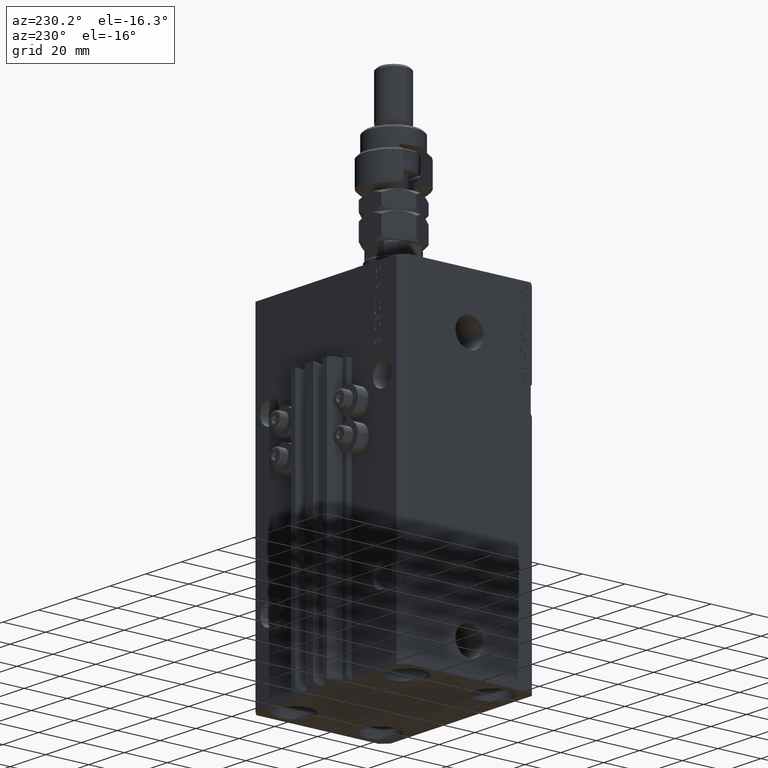
[diagram: clean part render]
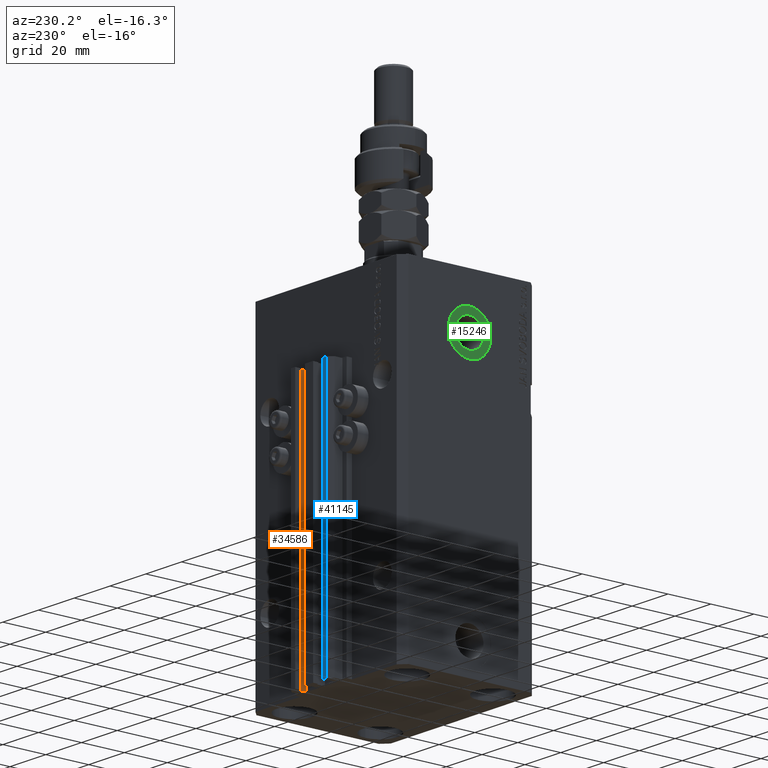
[diagram: same view with three faces highlighted in distinct colors, each labeled with its STEP entity id]
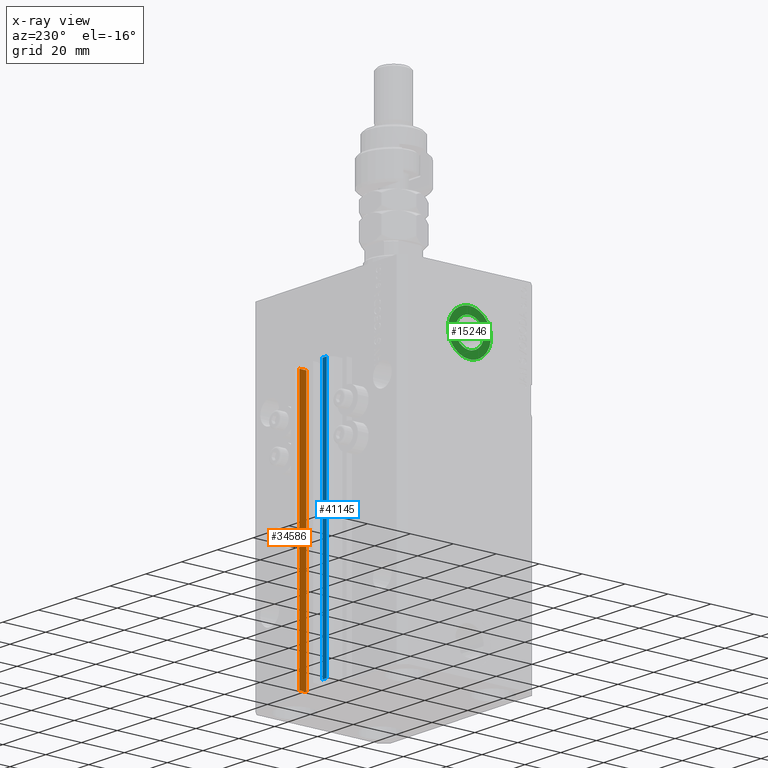
[diagram: x-ray of the same camera — body ghosted, the three highlighted faces saturated]
A machine part, auxiliary view with three faces highlighted in distinct colors.
The next image is the same camera in x-ray (body ghosted, the three faces saturated) — at least one of them is partly hidden behind the body in this view.
Their STEP definitions:

[orange] entity #34586 — the highlighted planar face has unit normal (-1, 0, 0).
#1674 = DIRECTION ( 'NONE',  ( -5.421010862427508365E-16, -1.000000000000000000, 0.000000000000000000 ) ) ;
#2915 = VERTEX_POINT ( 'NONE', #4393 ) ;
#4393 = CARTESIAN_POINT ( 'NONE',  ( 8.400000000000003908, 36.90000000000001279, -153.0000000000000000 ) ) ;
#4942 = ORIENTED_EDGE ( 'NONE', *, *, #14902, .F. ) ;
#6312 = ORIENTED_EDGE ( 'NONE', *, *, #30917, .T. ) ;
#7559 = LINE ( 'NONE', #50566, #14754 ) ;
#9654 = LINE ( 'NONE', #32600, #15060 ) ;
#9979 = DIRECTION ( 'NONE',  ( 0.000000000000000000, 0.000000000000000000, 1.000000000000000000 ) ) ;
#14754 = VECTOR ( 'NONE', #38989, 1000.000000000000000 ) ;
#14902 = EDGE_CURVE ( 'NONE', #28015, #39301, #7559, .T. ) ;
#15060 = VECTOR ( 'NONE', #1674, 1000.000000000000000 ) ;
#15575 = DIRECTION ( 'NONE',  ( -1.000000000000000000, 5.421010862427508365E-16, 0.000000000000000000 ) ) ;
#16651 = VERTEX_POINT ( 'NONE', #44770 ) ;
#18721 = LINE ( 'NONE', #19240, #36552 ) ;
#19240 = CARTESIAN_POINT ( 'NONE',  ( 8.400000000000000355, 33.70000000000000995, -153.0000000000000000 ) ) ;
#23113 = DIRECTION ( 'NONE',  ( 0.000000000000000000, 0.000000000000000000, 1.000000000000000000 ) ) ;
#23349 = EDGE_CURVE ( 'NONE', #2915, #28015, #32919, .T. ) ;
#23431 = CARTESIAN_POINT ( 'NONE',  ( 8.400000000000003908, 36.90000000000001279, -33.00000000000000000 ) ) ;
#27677 = FACE_OUTER_BOUND ( 'NONE', #48753, .T. ) ;
#28015 = VERTEX_POINT ( 'NONE', #23431 ) ;
#30917 = EDGE_CURVE ( 'NONE', #2915, #16651, #9654, .T. ) ;
#32600 = CARTESIAN_POINT ( 'NONE',  ( 8.400000000000000355, 36.90000000000001279, -153.0000000000000000 ) ) ;
#32919 = LINE ( 'NONE', #40631, #44483 ) ;
#33523 = EDGE_CURVE ( 'NONE', #16651, #39301, #18721, .T. ) ;
#34586 = ADVANCED_FACE ( 'NONE', ( #27677 ), #35685, .T. ) ;
#35685 = PLANE ( 'NONE',  #40693 ) ;
#36552 = VECTOR ( 'NONE', #23113, 1000.000000000000000 ) ;
#38806 = ORIENTED_EDGE ( 'NONE', *, *, #33523, .T. ) ;
#38989 = DIRECTION ( 'NONE',  ( -5.421010862427508365E-16, -1.000000000000000000, 0.000000000000000000 ) ) ;
#39301 = VERTEX_POINT ( 'NONE', #41905 ) ;
#40631 = CARTESIAN_POINT ( 'NONE',  ( 8.400000000000003908, 36.90000000000001279, -153.0000000000000000 ) ) ;
#40693 = AXIS2_PLACEMENT_3D ( 'NONE', #43640, #15575, #43133 ) ;
#41905 = CARTESIAN_POINT ( 'NONE',  ( 8.400000000000000355, 33.70000000000000995, -33.00000000000000000 ) ) ;
#43133 = DIRECTION ( 'NONE',  ( -5.421010862427508365E-16, -1.000000000000000000, 0.000000000000000000 ) ) ;
#43640 = CARTESIAN_POINT ( 'NONE',  ( 8.400000000000000355, 36.90000000000001279, -153.0000000000000000 ) ) ;
#44483 = VECTOR ( 'NONE', #9979, 1000.000000000000000 ) ;
#44770 = CARTESIAN_POINT ( 'NONE',  ( 8.400000000000000355, 33.70000000000000995, -153.0000000000000000 ) ) ;
#45231 = ORIENTED_EDGE ( 'NONE', *, *, #23349, .F. ) ;
#48753 = EDGE_LOOP ( 'NONE', ( #4942, #45231, #6312, #38806 ) ) ;
#50566 = CARTESIAN_POINT ( 'NONE',  ( 8.400000000000000355, 36.90000000000001279, -33.00000000000000000 ) ) ;

[blue] entity #41145 — the highlighted planar face has unit normal (0, 1, 0).
#98 = VECTOR ( 'NONE', #39646, 1000.000000000000000 ) ;
#486 = LINE ( 'NONE', #44510, #98 ) ;
#526 = ORIENTED_EDGE ( 'NONE', *, *, #39976, .F. ) ;
#2219 = DIRECTION ( 'NONE',  ( 0.000000000000000000, 0.000000000000000000, 1.000000000000000000 ) ) ;
#2374 = VECTOR ( 'NONE', #20120, 1000.000000000000000 ) ;
#2396 = EDGE_CURVE ( 'NONE', #44009, #28568, #30490, .T. ) ;
#2956 = VECTOR ( 'NONE', #9862, 1000.000000000000000 ) ;
#5662 = ORIENTED_EDGE ( 'NONE', *, *, #10595, .F. ) ;
#9862 = DIRECTION ( 'NONE',  ( 0.000000000000000000, 0.000000000000000000, 1.000000000000000000 ) ) ;
#10595 = EDGE_CURVE ( 'NONE', #10834, #28568, #39944, .T. ) ;
#10834 = VERTEX_POINT ( 'NONE', #12568 ) ;
#11791 = PLANE ( 'NONE',  #13695 ) ;
#12568 = CARTESIAN_POINT ( 'NONE',  ( -7.650000000000002132, 39.49999999999999289, -33.00000000000000000 ) ) ;
#13695 = AXIS2_PLACEMENT_3D ( 'NONE', #23893, #39854, #47577 ) ;
#13717 = CARTESIAN_POINT ( 'NONE',  ( -7.650000000000002132, 39.49999999999999289, -153.0000000000000000 ) ) ;
#14498 = CARTESIAN_POINT ( 'NONE',  ( -10.00000000000000000, 39.49999999999999289, -33.00000000000000000 ) ) ;
#15816 = EDGE_CURVE ( 'NONE', #30573, #44009, #486, .T. ) ;
#20120 = DIRECTION ( 'NONE',  ( -1.000000000000000000, 0.000000000000000000, 0.000000000000000000 ) ) ;
#23893 = CARTESIAN_POINT ( 'NONE',  ( -7.650000000000002132, 39.49999999999999289, -153.0000000000000000 ) ) ;
#28568 = VERTEX_POINT ( 'NONE', #14498 ) ;
#30490 = LINE ( 'NONE', #48580, #30920 ) ;
#30573 = VERTEX_POINT ( 'NONE', #41644 ) ;
#30920 = VECTOR ( 'NONE', #2219, 1000.000000000000000 ) ;
#32427 = CARTESIAN_POINT ( 'NONE',  ( -10.00000000000000000, 39.49999999999999289, -153.0000000000000000 ) ) ;
#35345 = CARTESIAN_POINT ( 'NONE',  ( -7.650000000000002132, 39.49999999999999289, -33.00000000000000000 ) ) ;
#39646 = DIRECTION ( 'NONE',  ( -1.000000000000000000, 0.000000000000000000, 0.000000000000000000 ) ) ;
#39854 = DIRECTION ( 'NONE',  ( 0.000000000000000000, 1.000000000000000000, -0.000000000000000000 ) ) ;
#39944 = LINE ( 'NONE', #35345, #2374 ) ;
#39976 = EDGE_CURVE ( 'NONE', #30573, #10834, #48495, .T. ) ;
#40357 = ORIENTED_EDGE ( 'NONE', *, *, #2396, .T. ) ;
#41145 = ADVANCED_FACE ( 'NONE', ( #47080 ), #11791, .T. ) ;
#41644 = CARTESIAN_POINT ( 'NONE',  ( -7.650000000000002132, 39.49999999999999289, -153.0000000000000000 ) ) ;
#43315 = EDGE_LOOP ( 'NONE', ( #5662, #526, #45065, #40357 ) ) ;
#44009 = VERTEX_POINT ( 'NONE', #32427 ) ;
#44510 = CARTESIAN_POINT ( 'NONE',  ( -7.650000000000002132, 39.49999999999999289, -153.0000000000000000 ) ) ;
#45065 = ORIENTED_EDGE ( 'NONE', *, *, #15816, .T. ) ;
#47080 = FACE_OUTER_BOUND ( 'NONE', #43315, .T. ) ;
#47577 = DIRECTION ( 'NONE',  ( 0.000000000000000000, 0.000000000000000000, 1.000000000000000000 ) ) ;
#48495 = LINE ( 'NONE', #13717, #2956 ) ;
#48580 = CARTESIAN_POINT ( 'NONE',  ( -10.00000000000000000, 39.49999999999999289, -153.0000000000000000 ) ) ;

[green] entity #15246 — the highlighted planar face has unit normal (-1, 0, 0).
#195 = DIRECTION ( 'NONE',  ( -1.000000000000000000, 0.000000000000000000, 0.000000000000000000 ) ) ;
#947 = DIRECTION ( 'NONE',  ( 0.000000000000000000, 0.000000000000000000, 1.000000000000000000 ) ) ;
#3143 = CARTESIAN_POINT ( 'NONE',  ( -42.39999999999999858, -3.469446951953614189E-15, -24.00000000000000000 ) ) ;
#6502 = FACE_BOUND ( 'NONE', #42216, .T. ) ;
#10777 = DIRECTION ( 'NONE',  ( 0.000000000000000000, 0.000000000000000000, 1.000000000000000000 ) ) ;
#12817 = EDGE_CURVE ( 'NONE', #47728, #28563, #16324, .T. ) ;
#14226 = FACE_OUTER_BOUND ( 'NONE', #20920, .T. ) ;
#15246 = ADVANCED_FACE ( 'NONE', ( #6502, #14226 ), #38185, .T. ) ;
#16324 = CIRCLE ( 'NONE', #31170, 6.579999999999999183 ) ;
#17491 = AXIS2_PLACEMENT_3D ( 'NONE', #46321, #195, #10777 ) ;
#17607 = DIRECTION ( 'NONE',  ( -1.000000000000000000, 0.000000000000000000, 0.000000000000000000 ) ) ;
#18211 = DIRECTION ( 'NONE',  ( 0.000000000000000000, 0.000000000000000000, 1.000000000000000000 ) ) ;
#18348 = CARTESIAN_POINT ( 'NONE',  ( -42.39999999999999858, -3.469446951953614189E-15, -17.42000000000000171 ) ) ;
#18421 = ORIENTED_EDGE ( 'NONE', *, *, #41637, .T. ) ;
#18841 = DIRECTION ( 'NONE',  ( -1.000000000000000000, 0.000000000000000000, 0.000000000000000000 ) ) ;
#19184 = VERTEX_POINT ( 'NONE', #34827 ) ;
#20920 = EDGE_LOOP ( 'NONE', ( #33456, #18421 ) ) ;
#21274 = CARTESIAN_POINT ( 'NONE',  ( -42.39999999999999858, -3.469446951953614189E-15, -24.00000000000000000 ) ) ;
#21543 = DIRECTION ( 'NONE',  ( -1.000000000000000000, 0.000000000000000000, 0.000000000000000000 ) ) ;
#28520 = AXIS2_PLACEMENT_3D ( 'NONE', #49788, #17607, #45430 ) ;
#28563 = VERTEX_POINT ( 'NONE', #18348 ) ;
#28929 = ORIENTED_EDGE ( 'NONE', *, *, #12817, .F. ) ;
#29389 = EDGE_CURVE ( 'NONE', #19184, #50065, #33959, .T. ) ;
#30872 = ORIENTED_EDGE ( 'NONE', *, *, #32723, .F. ) ;
#31170 = AXIS2_PLACEMENT_3D ( 'NONE', #21274, #21543, #947 ) ;
#31791 = CIRCLE ( 'NONE', #28520, 10.00000000000000000 ) ;
#32419 = CARTESIAN_POINT ( 'NONE',  ( -42.39999999999999858, -2.244800152806261524E-15, -34.00000000000000000 ) ) ;
#32723 = EDGE_CURVE ( 'NONE', #28563, #47728, #38977, .T. ) ;
#33456 = ORIENTED_EDGE ( 'NONE', *, *, #29389, .T. ) ;
#33959 = CIRCLE ( 'NONE', #17491, 10.00000000000000000 ) ;
#34590 = DIRECTION ( 'NONE',  ( 0.000000000000000000, 0.000000000000000000, 1.000000000000000000 ) ) ;
#34827 = CARTESIAN_POINT ( 'NONE',  ( -42.39999999999999858, -3.469446951953614189E-15, -14.00000000000000000 ) ) ;
#38185 = PLANE ( 'NONE',  #45193 ) ;
#38977 = CIRCLE ( 'NONE', #39810, 6.579999999999999183 ) ;
#39810 = AXIS2_PLACEMENT_3D ( 'NONE', #46029, #46292, #18211 ) ;
#39926 = CARTESIAN_POINT ( 'NONE',  ( -42.39999999999999858, -2.663629358114655936E-15, -30.57999999999999829 ) ) ;
#41637 = EDGE_CURVE ( 'NONE', #50065, #19184, #31791, .T. ) ;
#42216 = EDGE_LOOP ( 'NONE', ( #30872, #28929 ) ) ;
#45193 = AXIS2_PLACEMENT_3D ( 'NONE', #3143, #18841, #34590 ) ;
#45430 = DIRECTION ( 'NONE',  ( 0.000000000000000000, 0.000000000000000000, 1.000000000000000000 ) ) ;
#46029 = CARTESIAN_POINT ( 'NONE',  ( -42.39999999999999858, -3.469446951953614189E-15, -24.00000000000000000 ) ) ;
#46292 = DIRECTION ( 'NONE',  ( -1.000000000000000000, 0.000000000000000000, 0.000000000000000000 ) ) ;
#46321 = CARTESIAN_POINT ( 'NONE',  ( -42.39999999999999858, -3.469446951953614189E-15, -24.00000000000000000 ) ) ;
#47728 = VERTEX_POINT ( 'NONE', #39926 ) ;
#49788 = CARTESIAN_POINT ( 'NONE',  ( -42.39999999999999858, -3.469446951953614189E-15, -24.00000000000000000 ) ) ;
#50065 = VERTEX_POINT ( 'NONE', #32419 ) ;